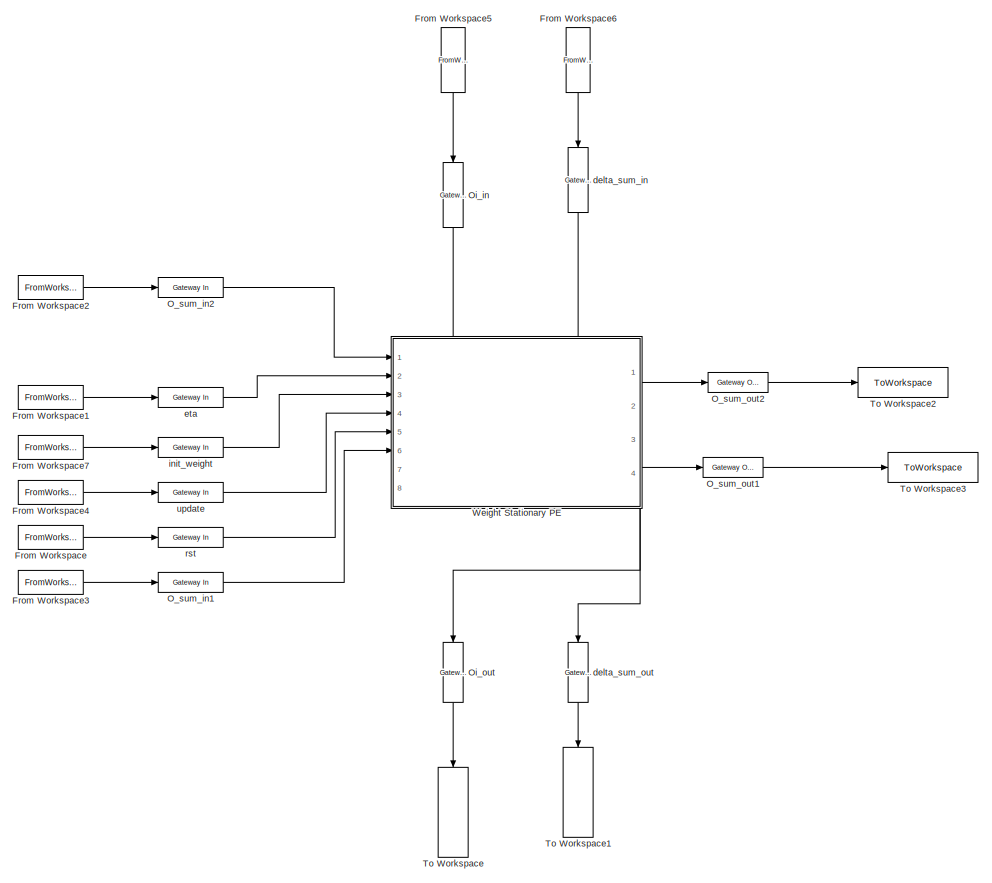
[diagram: root canvas - part 1/2, center side, full height]
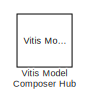
[diagram: root canvas - part 2/2, bottom left region]
MODEL slx_832e8eed7d2c
KIND model
CONFIG AbsTol = auto
CONFIG EnableMultiTasking = off
CONFIG FixedStep = auto
CONFIG MaxStep = auto
CONFIG MinStep = auto
CONFIG RelTol = 1e-3
CONFIG SampleTimeConstraint = Unconstrained
CONFIG SolverName = VariableStepAuto
CONFIG StartTime = 0.0
CONFIG StopTime = 10
BLOCK [FromWorkspace] From Workspace
  VariableName = rst
BLOCK [FromWorkspace] From Workspace1
  VariableName = eta
BLOCK [FromWorkspace] From Workspace2
  VariableName = o_sum_in2
BLOCK [FromWorkspace] From Workspace3
  VariableName = o_sum_in1
BLOCK [FromWorkspace] From Workspace4
  VariableName = update_in
BLOCK [FromWorkspace] From Workspace5
  NameLocation = left
  VariableName = oi_in
BLOCK [FromWorkspace] From Workspace6
  NameLocation = left
  VariableName = delta_in
BLOCK [FromWorkspace] From Workspace7
  VariableName = init_weight
BLOCK [Reference] O_sum_in1  REF=hdlBasic/Gateway In
  Ports = [1, 1]
  SourceBlock = hdlBasic/Gateway In
  SourceType = Gateway In Block
BLOCK [Reference] O_sum_in2  REF=hdlBasic/Gateway In
  Ports = [1, 1]
  SourceBlock = hdlBasic/Gateway In
  SourceType = Gateway In Block
BLOCK [Reference] O_sum_out1  REF=hdlBasic/Gateway Out
  Ports = [1, 1]
  SourceBlock = hdlBasic/Gateway Out
  SourceType = Gateway Out Block
BLOCK [Reference] O_sum_out2  REF=hdlBasic/Gateway Out
  Ports = [1, 1]
  SourceBlock = hdlBasic/Gateway Out
  SourceType = Gateway Out Block
BLOCK [Reference] Oi_in  REF=hdlBasic/Gateway In
  NameLocation = left
  Ports = [1, 1]
  SourceBlock = hdlBasic/Gateway In
  SourceType = Gateway In Block
BLOCK [Reference] Oi_out  REF=hdlBasic/Gateway Out
  NameLocation = left
  Ports = [1, 1]
  SourceBlock = hdlBasic/Gateway Out
  SourceType = Gateway Out Block
BLOCK [ToWorkspace] To Workspace
  FixptAsFi = on
  MaxDataPoints = inf
  NameLocation = left
  Ports = [1]
  SampleTime = -1
  SaveFormat = Timeseries
  VariableName = oi_out
BLOCK [ToWorkspace] To Workspace1
  FixptAsFi = on
  MaxDataPoints = inf
  NameLocation = left
  Ports = [1]
  SampleTime = -1
  SaveFormat = Timeseries
  VariableName = delta_sum_out
BLOCK [ToWorkspace] To Workspace2
  FixptAsFi = on
  MaxDataPoints = inf
  Ports = [1]
  SampleTime = -1
  SaveFormat = Timeseries
  VariableName = o_sum_out2
BLOCK [ToWorkspace] To Workspace3
  FixptAsFi = on
  MaxDataPoints = inf
  Ports = [1]
  SampleTime = -1
  SaveFormat = Timeseries
  VariableName = o_sum_out1
BLOCK [Reference] Vitis Model Composer Hub  REF=vmcUtilities/Vitis Model Composer Hub
  Ports = []
  SourceBlock = vmcUtilities/Vitis Model Composer Hub
  SourceType = VMC Hub
  Tag = genX
  UserDataPersistent = on
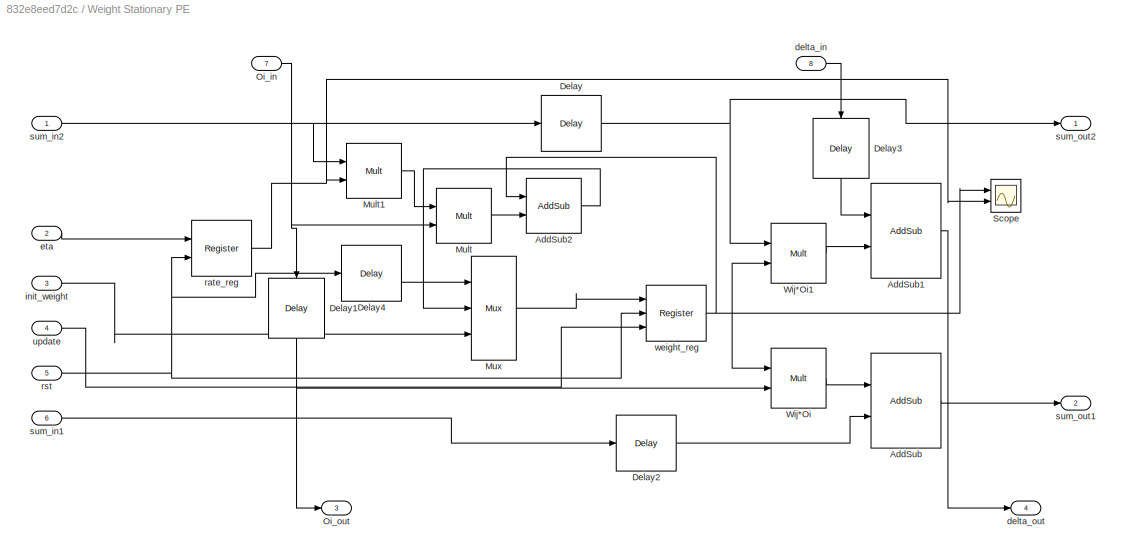
BLOCK [SubSystem] Weight Stationary PE
  PortSchema = {"entries":[{"content":{"sides":[{"content":{"connectorIds":["In1","In2","In3","In4","In5","In6"]},"type":"ConnectorPlacement.EquallySpacedRectSide","uuid":"632a3ded-5b94-406e-b0d8-119737680536"},{"content":{"connectorIds":["Out1","Out2"],"side":"RIGHT"},"type":"ConnectorPlacement.EquallySpacedRectSide","uuid":"c449027c-81bc-4843-8994-fcad26195520"},{"content":{"connectorIds":["In7","In8"],"side":...<+445ch>
  Ports = [8, 4]
  RequestExecContextInheritance = off
BLOCK [Reference] Weight Stationary PE/AddSub  REF=hdlBasic/AddSub
  Ports = [2, 1]
  SourceBlock = hdlBasic/AddSub
  SourceType = Adder/Subtracter Block
BLOCK [Reference] Weight Stationary PE/AddSub1  REF=hdlBasic/AddSub
  Ports = [2, 1]
  SourceBlock = hdlBasic/AddSub
  SourceType = Adder/Subtracter Block
BLOCK [Reference] Weight Stationary PE/AddSub2  REF=hdlBasic/AddSub
  Ports = [2, 1]
  SourceBlock = hdlBasic/AddSub
  SourceType = Adder/Subtracter Block
BLOCK [Reference] Weight Stationary PE/Delay  REF=hdlBasic/Delay
  Ports = [1, 1]
  SourceBlock = hdlBasic/Delay
  SourceType = Delay Block
BLOCK [Reference] Weight Stationary PE/Delay1  REF=hdlBasic/Delay
  NameLocation = left
  Ports = [1, 1]
  SourceBlock = hdlBasic/Delay
  SourceType = Delay Block
BLOCK [Reference] Weight Stationary PE/Delay2  REF=hdlBasic/Delay
  Ports = [1, 1]
  SourceBlock = hdlBasic/Delay
  SourceType = Delay Block
BLOCK [Reference] Weight Stationary PE/Delay3  REF=hdlBasic/Delay
  NameLocation = left
  Ports = [1, 1]
  SourceBlock = hdlBasic/Delay
  SourceType = Delay Block
BLOCK [Reference] Weight Stationary PE/Delay4  REF=hdlBasic/Delay
  Ports = [1, 1]
  SourceBlock = hdlBasic/Delay
  SourceType = Delay Block
BLOCK [Reference] Weight Stationary PE/Mult  REF=hdlBasic/Mult
  Ports = [2, 1]
  SourceBlock = hdlBasic/Mult
  SourceType = Multiplier Block
BLOCK [Reference] Weight Stationary PE/Mult1  REF=hdlBasic/Mult
  Ports = [2, 1]
  SourceBlock = hdlBasic/Mult
  SourceType = Multiplier Block
BLOCK [Reference] Weight Stationary PE/Mux  REF=hdlBasic/Mux
  Ports = [3, 1]
  SourceBlock = hdlBasic/Mux
  SourceType = Bus Multiplexer Block
BLOCK [Inport] Weight Stationary PE/Oi_in
  Port = 7
BLOCK [Outport] Weight Stationary PE/Oi_out
  Port = 3
BLOCK [Scope] Weight Stationary PE/Scope
  Floating = off
  NumInputPorts = 2
  Ports = [2]
  ScopeSpecificationString = Simulink.scopes.TimeScopeBlockCfg('CurrentConfiguration', extmgr.ConfigurationSet(extmgr.Configuration('Core','General UI',true),extmgr.Configuration('Core','Source UI',true),extmgr.Configuration('Sources','WiredSimulink',true),extmgr.Configuration('Visuals','Time Domain',true,'SerializedDisplays',{struct('MinYLimReal','-10.25','MaxYLimReal','2.25','YLabelReal','','MinYLimMag','0.00000','MaxYLimMa...<+2019ch>
BLOCK [Reference] Weight Stationary PE/Wij*Oi  REF=hdlBasic/Mult
  Ports = [2, 1]
  SourceBlock = hdlBasic/Mult
  SourceType = Multiplier Block
BLOCK [Reference] Weight Stationary PE/Wij*Oi1  REF=hdlBasic/Mult
  Ports = [2, 1]
  SourceBlock = hdlBasic/Mult
  SourceType = Multiplier Block
BLOCK [Inport] Weight Stationary PE/delta_in
  Port = 8
BLOCK [Outport] Weight Stationary PE/delta_out
  Port = 4
BLOCK [Inport] Weight Stationary PE/eta
  Port = 2
BLOCK [Inport] Weight Stationary PE/init_weight
  Port = 3
BLOCK [Reference] Weight Stationary PE/rate_reg  REF=hdlBasic/Register
  Ports = [2, 1]
  SourceBlock = hdlBasic/Register
  SourceType = Register Block
BLOCK [Inport] Weight Stationary PE/rst
  Port = 5
BLOCK [Inport] Weight Stationary PE/sum_in1
  Port = 6
BLOCK [Inport] Weight Stationary PE/sum_in2
BLOCK [Outport] Weight Stationary PE/sum_out1
  Port = 2
BLOCK [Outport] Weight Stationary PE/sum_out2
BLOCK [Inport] Weight Stationary PE/update
  Port = 4
BLOCK [Reference] Weight Stationary PE/weight_reg  REF=hdlBasic/Register
  Ports = [3, 1]
  SourceBlock = hdlBasic/Register
  SourceType = Register Block
BLOCK [Reference] delta_sum_in  REF=hdlBasic/Gateway In
  NameLocation = left
  Ports = [1, 1]
  SourceBlock = hdlBasic/Gateway In
  SourceType = Gateway In Block
BLOCK [Reference] delta_sum_out  REF=hdlBasic/Gateway Out
  NameLocation = left
  Ports = [1, 1]
  SourceBlock = hdlBasic/Gateway Out
  SourceType = Gateway Out Block
BLOCK [Reference] eta  REF=hdlBasic/Gateway In
  Ports = [1, 1]
  SourceBlock = hdlBasic/Gateway In
  SourceType = Gateway In Block
BLOCK [Reference] init_weight  REF=hdlBasic/Gateway In
  Ports = [1, 1]
  SourceBlock = hdlBasic/Gateway In
  SourceType = Gateway In Block
BLOCK [Reference] rst  REF=hdlBasic/Gateway In
  Ports = [1, 1]
  SourceBlock = hdlBasic/Gateway In
  SourceType = Gateway In Block
BLOCK [Reference] update  REF=hdlBasic/Gateway In
  Ports = [1, 1]
  SourceBlock = hdlBasic/Gateway In
  SourceType = Gateway In Block
LINE From Workspace1:1 -> eta:1
LINE From Workspace2:1 -> O_sum_in2:1
LINE From Workspace3:1 -> O_sum_in1:1
LINE From Workspace4:1 -> update:1
LINE From Workspace5:1 -> Oi_in:1
LINE From Workspace6:1 -> delta_sum_in:1
LINE From Workspace7:1 -> init_weight:1
LINE From Workspace:1 -> rst:1
LINE O_sum_in1:1 -> Weight Stationary PE:6
LINE O_sum_in2:1 -> Weight Stationary PE:1
LINE O_sum_out1:1 -> To Workspace3:1
LINE O_sum_out2:1 -> To Workspace2:1
LINE Oi_in:1 -> Weight Stationary PE:7
LINE Oi_out:1 -> To Workspace:1
LINE Weight Stationary PE/AddSub1:1 -> Weight Stationary PE/delta_out:1
LINE Weight Stationary PE/AddSub2:1 -> Weight Stationary PE/Mux:2
LINE Weight Stationary PE/AddSub:1 -> Weight Stationary PE/sum_out1:1
NET Weight Stationary PE/Delay1:1 -> Weight Stationary PE/Oi_out:1, Weight Stationary PE/Wij*Oi:2
LINE Weight Stationary PE/Delay2:1 -> Weight Stationary PE/AddSub:2
LINE Weight Stationary PE/Delay3:1 -> Weight Stationary PE/AddSub1:1
LINE Weight Stationary PE/Delay4:1 -> Weight Stationary PE/Mux:1
NET Weight Stationary PE/Delay:1 -> Weight Stationary PE/Wij*Oi1:1, Weight Stationary PE/sum_out2:1
LINE Weight Stationary PE/Mult1:1 -> Weight Stationary PE/Mult:1
LINE Weight Stationary PE/Mult:1 -> Weight Stationary PE/AddSub2:2
LINE Weight Stationary PE/Mux:1 -> Weight Stationary PE/weight_reg:1
NET Weight Stationary PE/Oi_in:1 -> Weight Stationary PE/Delay1:1, Weight Stationary PE/Mult:2
LINE Weight Stationary PE/Wij*Oi1:1 -> Weight Stationary PE/AddSub1:2
LINE Weight Stationary PE/Wij*Oi:1 -> Weight Stationary PE/AddSub:1
LINE Weight Stationary PE/delta_in:1 -> Weight Stationary PE/Delay3:1
LINE Weight Stationary PE/eta:1 -> Weight Stationary PE/rate_reg:1
LINE Weight Stationary PE/init_weight:1 -> Weight Stationary PE/Mux:3
NET Weight Stationary PE/rate_reg:1 -> Weight Stationary PE/Mult1:2, Weight Stationary PE/Scope:2
NET Weight Stationary PE/rst:1 -> Weight Stationary PE/Delay4:1, Weight Stationary PE/rate_reg:2, Weight Stationary PE/weight_reg:2
LINE Weight Stationary PE/sum_in1:1 -> Weight Stationary PE/Delay2:1
NET Weight Stationary PE/sum_in2:1 -> Weight Stationary PE/Delay:1, Weight Stationary PE/Mult1:1
LINE Weight Stationary PE/update:1 -> Weight Stationary PE/weight_reg:3
NET Weight Stationary PE/weight_reg:1 -> Weight Stationary PE/AddSub2:1, Weight Stationary PE/Scope:1, Weight Stationary PE/Wij*Oi1:2, Weight Stationary PE/Wij*Oi:1
LINE Weight Stationary PE:1 -> O_sum_out2:1
LINE Weight Stationary PE:2 -> O_sum_out1:1
LINE Weight Stationary PE:3 -> Oi_out:1
LINE Weight Stationary PE:4 -> delta_sum_out:1
LINE delta_sum_in:1 -> Weight Stationary PE:8
LINE delta_sum_out:1 -> To Workspace1:1
LINE eta:1 -> Weight Stationary PE:2
LINE init_weight:1 -> Weight Stationary PE:3
LINE rst:1 -> Weight Stationary PE:5
LINE update:1 -> Weight Stationary PE:4
note: NET lines group one-source signal fan-out (src -> all destinations, sorted); 1:1 wires keep LINE
